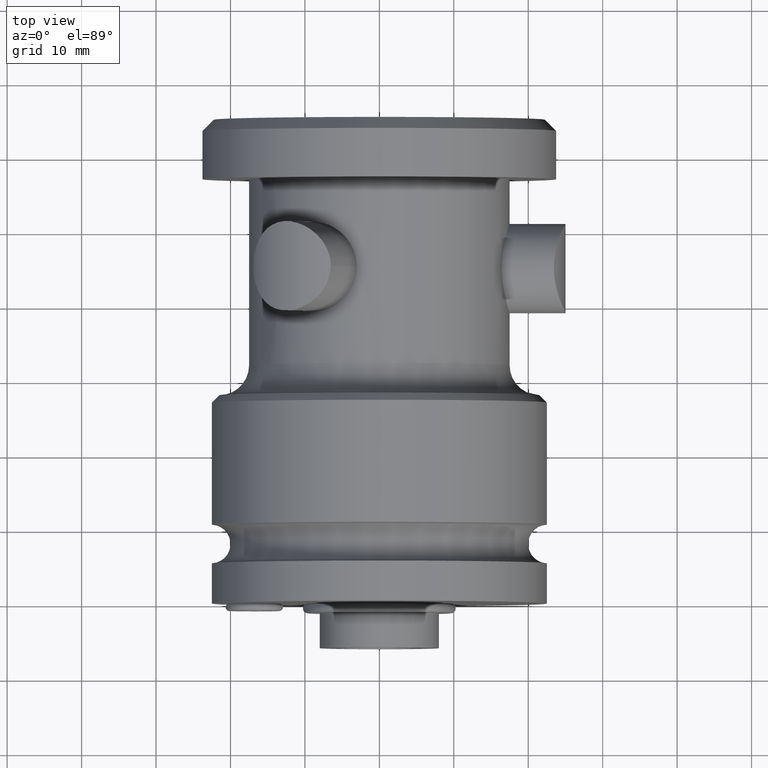
[diagram: clean part render]
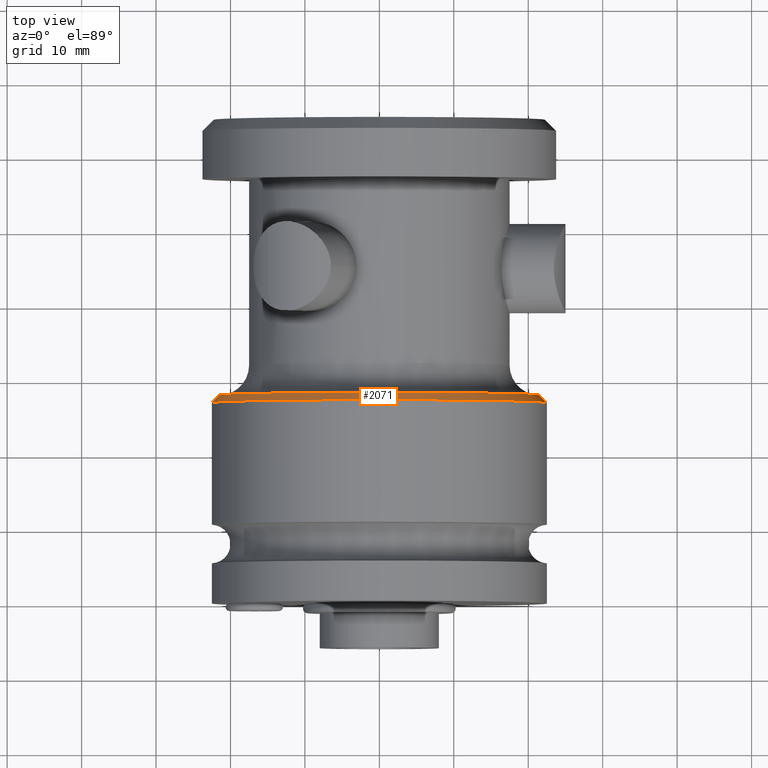
[diagram: same view with one face highlighted and labeled with its STEP entity id]
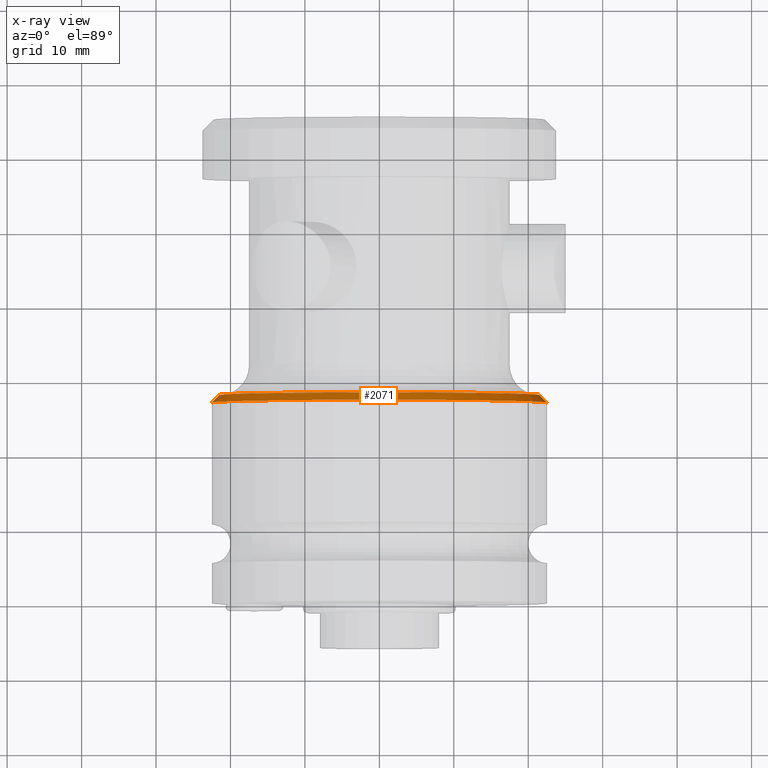
[diagram: x-ray of the same camera — body ghosted, the highlighted face saturated]
A machine part, top view. The second image highlights one B-rep face of the part: STEP entity #2071.
The next image is the same camera in x-ray: the body ghosted, the highlighted face saturated — about 0% of this face is hidden behind the body in this view.
In plain terms, the highlighted conical surface has half-angle 45 deg.
Its self-contained STEP definition (entity closure, byte-faithful):
#540=DIRECTION('',(-7.071067811865E-1,7.071067811866E-1,0.E0));
#541=VECTOR('',#540,1.414213562373E0);
#542=CARTESIAN_POINT('',(2.25E1,2.7E1,0.E0));
#543=LINE('',#542,#541);
#547=CARTESIAN_POINT('',(0.E0,2.7E1,0.E0));
#548=DIRECTION('',(0.E0,-1.E0,0.E0));
#549=DIRECTION('',(1.E0,0.E0,0.E0));
#550=AXIS2_PLACEMENT_3D('',#547,#548,#549);
#555=DIRECTION('',(7.071067811865E-1,7.071067811866E-1,0.E0));
#556=VECTOR('',#555,1.414213562373E0);
#557=CARTESIAN_POINT('',(-2.25E1,2.7E1,0.E0));
#558=LINE('',#557,#556);
#586=CARTESIAN_POINT('',(0.E0,2.8E1,0.E0));
#587=DIRECTION('',(0.E0,-1.E0,0.E0));
#588=DIRECTION('',(1.E0,0.E0,0.E0));
#589=AXIS2_PLACEMENT_3D('',#586,#587,#588);
#1467=CARTESIAN_POINT('',(2.25E1,2.7E1,0.E0));
#1468=VERTEX_POINT('',#1467);
#1469=CARTESIAN_POINT('',(2.15E1,2.8E1,0.E0));
#1470=VERTEX_POINT('',#1469);
#1489=CARTESIAN_POINT('',(-2.25E1,2.7E1,0.E0));
#1490=VERTEX_POINT('',#1489);
#1491=CARTESIAN_POINT('',(-2.15E1,2.8E1,0.E0));
#1492=VERTEX_POINT('',#1491);
#2057=CARTESIAN_POINT('',(0.E0,2.75E1,0.E0));
#2058=DIRECTION('',(0.E0,-1.E0,0.E0));
#2059=DIRECTION('',(-1.E0,0.E0,0.E0));
#2060=AXIS2_PLACEMENT_3D('',#2057,#2058,#2059);
#2061=CONICAL_SURFACE('',#2060,2.2E1,4.5E1);
#2063=ORIENTED_EDGE('',*,*,#2062,.F.);
#2064=ORIENTED_EDGE('',*,*,#2052,.T.);
#2066=ORIENTED_EDGE('',*,*,#2065,.T.);
#2068=ORIENTED_EDGE('',*,*,#2067,.F.);
#2069=EDGE_LOOP('',(#2063,#2064,#2066,#2068));
#2070=FACE_OUTER_BOUND('',#2069,.F.);
#551=CIRCLE('',#550,2.25E1);
#590=CIRCLE('',#589,2.15E1);
#2052=EDGE_CURVE('',#1468,#1490,#551,.T.);
#2062=EDGE_CURVE('',#1468,#1470,#543,.T.);
#2065=EDGE_CURVE('',#1490,#1492,#558,.T.);
#2067=EDGE_CURVE('',#1470,#1492,#590,.T.);
#2071=ADVANCED_FACE('',(#2070),#2061,.T.);